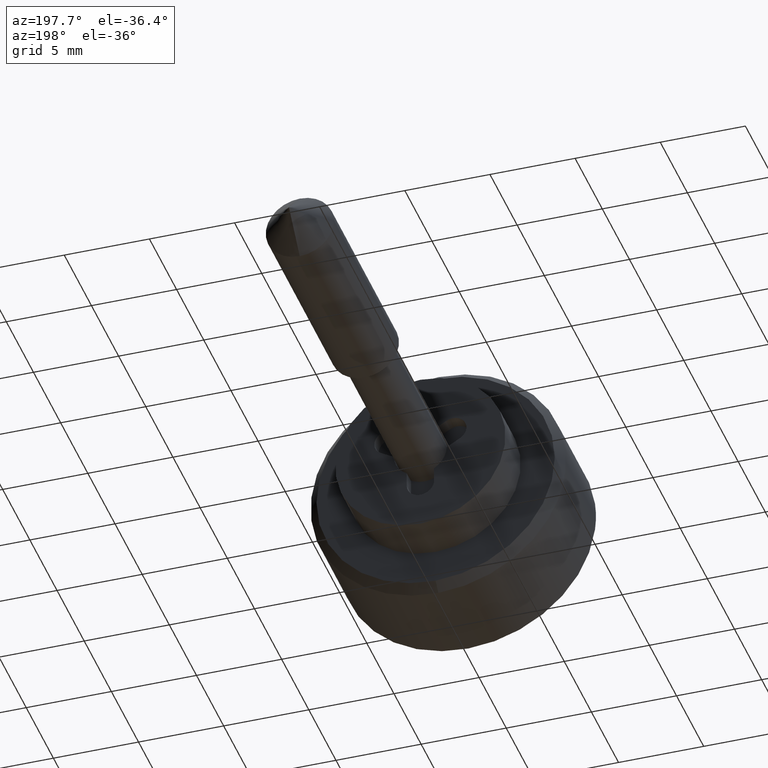
[diagram: clean part render]
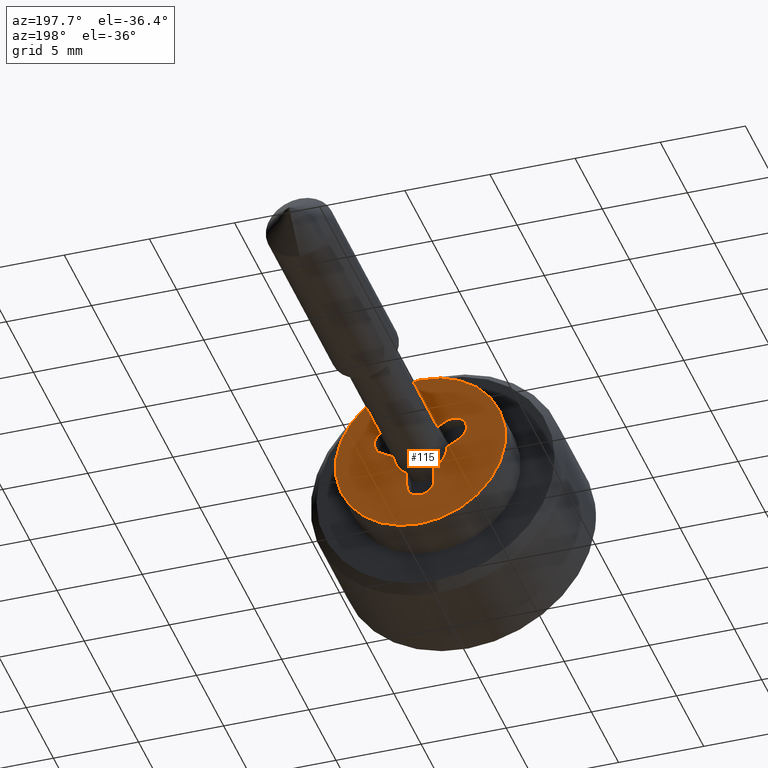
[diagram: same view with one face highlighted and labeled with its STEP entity id]
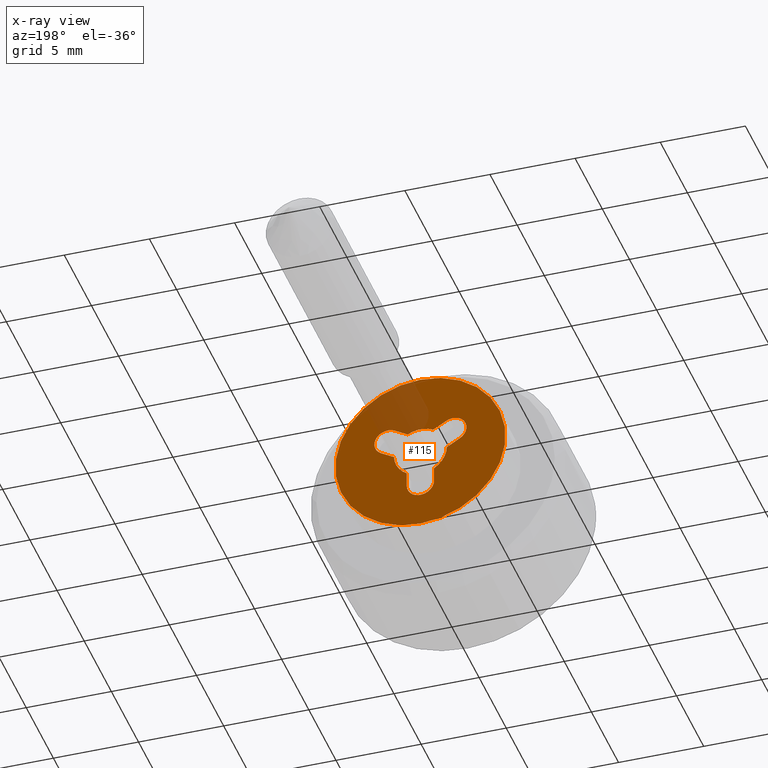
[diagram: x-ray of the same camera — body ghosted, the highlighted face saturated]
A machine part, auxiliary view. The second image highlights one B-rep face of the part: STEP entity #115.
The next image is the same camera in x-ray: the body ghosted, the highlighted face saturated — about 14% of this face is hidden behind the body in this view.
In plain terms, the highlighted planar face has unit normal (0, 1, 0).
Its self-contained STEP definition (entity closure, byte-faithful):
#115=ADVANCED_FACE('',(#181,#182),#180,.T.);
#180=PLANE('',#553);
#181=FACE_OUTER_BOUND('',#554,.T.);
#182=FACE_BOUND('',#555,.T.);
#550=CARTESIAN_POINT('',(-1.03923048454E+01,8.00000000000E-01,6.50000000000E+00));
#551=DIRECTION('',(-0.00000000000E+00,1.00000000000E+00,0.00000000000E+00));
#552=DIRECTION('',(1.00000000000E+00,0.00000000000E+00,0.00000000000E+00));
#553=AXIS2_PLACEMENT_3D('',#550,#551,#552);
#554=EDGE_LOOP('',(#778,#779));
#555=EDGE_LOOP('',(#780,#781,#782,#783,#784,#785,#786,#787,#788,#789,#790,#791));
#778=ORIENTED_EDGE('',*,*,#948,.F.);
#779=ORIENTED_EDGE('',*,*,#949,.F.);
#780=ORIENTED_EDGE('',*,*,#950,.F.);
#781=ORIENTED_EDGE('',*,*,#951,.T.);
#782=ORIENTED_EDGE('',*,*,#952,.F.);
#783=ORIENTED_EDGE('',*,*,#943,.T.);
#784=ORIENTED_EDGE('',*,*,#940,.F.);
#785=ORIENTED_EDGE('',*,*,#947,.T.);
#786=ORIENTED_EDGE('',*,*,#953,.F.);
#787=ORIENTED_EDGE('',*,*,#954,.T.);
#788=ORIENTED_EDGE('',*,*,#955,.F.);
#789=ORIENTED_EDGE('',*,*,#956,.T.);
#790=ORIENTED_EDGE('',*,*,#957,.F.);
#791=ORIENTED_EDGE('',*,*,#958,.T.);
#940=EDGE_CURVE('',#1032,#1039,#1040,.T.);
#943=EDGE_CURVE('',#1059,#1039,#1060,.T.);
#947=EDGE_CURVE('',#1032,#1079,#1086,.T.);
#948=EDGE_CURVE('',#1092,#1093,#1094,.T.);
#949=EDGE_CURVE('',#1093,#1092,#1100,.T.);
#950=EDGE_CURVE('',#1106,#1107,#1108,.T.);
#951=EDGE_CURVE('',#1106,#1114,#1115,.T.);
#952=EDGE_CURVE('',#1059,#1114,#1121,.T.);
#953=EDGE_CURVE('',#1127,#1079,#1128,.T.);
#954=EDGE_CURVE('',#1127,#1134,#1135,.T.);
#955=EDGE_CURVE('',#1141,#1134,#1142,.T.);
#956=EDGE_CURVE('',#1141,#1148,#1149,.T.);
#957=EDGE_CURVE('',#1155,#1148,#1156,.T.);
#958=EDGE_CURVE('',#1155,#1107,#1162,.T.);
#1032=VERTEX_POINT('',#1600);
#1039=VERTEX_POINT('',#1604);
#1040=LINE('',#1605,#1606);
#1059=VERTEX_POINT('',#1616);
#1060=CIRCLE('',#1620,1.55000000000E+00);
#1079=VERTEX_POINT('',#1629);
#1086=CIRCLE('',#1636,8.00034664654E-01);
#1092=VERTEX_POINT('',#1637);
#1093=VERTEX_POINT('',#1638);
#1094=CIRCLE('',#1642,5.00000000000E+00);
#1100=CIRCLE('',#1646,5.00000000000E+00);
#1106=VERTEX_POINT('',#1647);
#1107=VERTEX_POINT('',#1648);
#1108=LINE('',#1649,#1650);
#1114=VERTEX_POINT('',#1652);
#1115=CIRCLE('',#1656,8.00034337861E-01);
#1121=LINE('',#1657,#1658);
#1127=VERTEX_POINT('',#1660);
#1128=LINE('',#1661,#1662);
#1134=VERTEX_POINT('',#1664);
#1135=CIRCLE('',#1668,1.55000000000E+00);
#1141=VERTEX_POINT('',#1669);
#1142=LINE('',#1670,#1671);
#1148=VERTEX_POINT('',#1673);
#1149=CIRCLE('',#1677,8.00000000000E-01);
#1155=VERTEX_POINT('',#1678);
#1156=LINE('',#1679,#1680);
#1162=CIRCLE('',#1685,1.55000000000E+00);
#1600=CARTESIAN_POINT('',(-1.50530000000E+00,8.00000000000E-01,1.79290000000E+00));
#1604=CARTESIAN_POINT('',(-7.49690762770E-01,8.00000000000E-01,1.35663693014E+00));
#1605=CARTESIAN_POINT('',(-1.50530000000E+00,8.00000000000E-01,1.79290000000E+00));
#1606=VECTOR('',#1607,8.72508329767E-01);
#1607=DIRECTION('',(8.66019511163E-01,0.00000000000E+00,-5.00010206181E-01));
#1616=CARTESIAN_POINT('',(7.49639666225E-01,8.00000000000E-01,1.35666516533E+00));
#1617=CARTESIAN_POINT('',(0.00000000000E+00,8.00000000000E-01,0.00000000000E+00));
#1618=DIRECTION('',(0.00000000000E+00,-1.00000000000E+00,0.00000000000E+00));
#1619=DIRECTION('',(-0.00000000000E+00,-0.00000000000E+00,-1.00000000000E+00));
#1620=AXIS2_PLACEMENT_3D('',#1617,#1618,#1619);
#1629=CARTESIAN_POINT('',(-2.30070374578E+00,8.00000000000E-01,4.04546279163E-01));
#1633=CARTESIAN_POINT('',(-1.90532549763E+00,8.00000000000E-01,1.10005437080E+00));
#1634=DIRECTION('',(0.00000000000E+00,-1.00000000000E+00,0.00000000000E+00));
#1635=DIRECTION('',(-0.00000000000E+00,-0.00000000000E+00,-1.00000000000E+00));
#1636=AXIS2_PLACEMENT_3D('',#1633,#1634,#1635);
#1637=CARTESIAN_POINT('',(5.92118946467E-16,8.00000000000E-01,-5.00000000000E+00));
#1638=CARTESIAN_POINT('',(0.00000000000E+00,8.00000000000E-01,5.00000000000E+00));
#1639=CARTESIAN_POINT('',(0.00000000000E+00,8.00000000000E-01,0.00000000000E+00));
#1640=DIRECTION('',(-0.00000000000E+00,-1.00000000000E+00,0.00000000000E+00));
#1641=DIRECTION('',(-1.22460635382E-16,0.00000000000E+00,1.00000000000E+00));
#1642=AXIS2_PLACEMENT_3D('',#1639,#1640,#1641);
#1643=CARTESIAN_POINT('',(0.00000000000E+00,8.00000000000E-01,0.00000000000E+00));
#1644=DIRECTION('',(-0.00000000000E+00,-1.00000000000E+00,0.00000000000E+00));
#1645=DIRECTION('',(-1.22460635382E-16,0.00000000000E+00,1.00000000000E+00));
#1646=AXIS2_PLACEMENT_3D('',#1643,#1644,#1645);
#1647=CARTESIAN_POINT('',(2.30979498356E+00,8.00000000000E-01,4.09852987198E-01));
#1648=CARTESIAN_POINT('',(1.54972899915E+00,8.00000000000E-01,-2.89832568746E-02));
#1649=CARTESIAN_POINT('',(2.30979498356E+00,8.00000000000E-01,4.09852987198E-01));
#1650=VECTOR('',#1651,8.77654573144E-01);
#1651=DIRECTION('',(-8.66019511163E-01,0.00000000000E+00,-5.00010206181E-01));
#1652=CARTESIAN_POINT('',(1.50520000000E+00,8.00000000000E-01,1.79290000000E+00));
#1653=CARTESIAN_POINT('',(1.90522533423E+00,8.00000000000E-01,1.10005465381E+00));
#1654=DIRECTION('',(0.00000000000E+00,-1.00000000000E+00,0.00000000000E+00));
#1655=DIRECTION('',(-0.00000000000E+00,-0.00000000000E+00,-1.00000000000E+00));
#1656=AXIS2_PLACEMENT_3D('',#1653,#1654,#1655);
#1657=CARTESIAN_POINT('',(7.49639666225E-01,8.00000000000E-01,1.35666516533E+00));
#1658=VECTOR('',#1659,8.72451860536E-01);
#1659=DIRECTION('',(8.66019511163E-01,0.00000000000E+00,5.00010206181E-01));
#1660=CARTESIAN_POINT('',(-1.54972790646E+00,8.00000000000E-01,-2.90416243587E-02));
#1661=CARTESIAN_POINT('',(-1.54972790646E+00,8.00000000000E-01,-2.90416243587E-02));
#1662=VECTOR('',#1663,8.67158106298E-01);
#1663=DIRECTION('',(-8.66019511163E-01,0.00000000000E+00,5.00010206181E-01));
#1664=CARTESIAN_POINT('',(-8.00000000000E-01,8.00000000000E-01,-1.32759180474E+00));
#1665=CARTESIAN_POINT('',(0.00000000000E+00,8.00000000000E-01,0.00000000000E+00));
#1666=DIRECTION('',(0.00000000000E+00,-1.00000000000E+00,0.00000000000E+00));
#1667=DIRECTION('',(-0.00000000000E+00,-0.00000000000E+00,-1.00000000000E+00));
#1668=AXIS2_PLACEMENT_3D('',#1665,#1666,#1667);
#1669=CARTESIAN_POINT('',(-8.00000000000E-01,8.00000000000E-01,-2.20000000000E+00));
#1670=CARTESIAN_POINT('',(-8.00000000000E-01,8.00000000000E-01,-2.20000000000E+00));
#1671=VECTOR('',#1672,8.72408195265E-01);
#1672=DIRECTION('',(0.00000000000E+00,0.00000000000E+00,1.00000000000E+00));
#1673=CARTESIAN_POINT('',(8.00000000000E-01,8.00000000000E-01,-2.20000000000E+00));
#1674=CARTESIAN_POINT('',(0.00000000000E+00,8.00000000000E-01,-2.20000000000E+00));
#1675=DIRECTION('',(0.00000000000E+00,-1.00000000000E+00,0.00000000000E+00));
#1676=DIRECTION('',(1.00000000000E+00,0.00000000000E+00,1.83690953073E-16));
#1677=AXIS2_PLACEMENT_3D('',#1674,#1675,#1676);
#1678=CARTESIAN_POINT('',(8.00000000000E-01,8.00000000000E-01,-1.32759180474E+00));
#1679=CARTESIAN_POINT('',(8.00000000000E-01,8.00000000000E-01,-1.32759180474E+00));
#1680=VECTOR('',#1681,8.72408195265E-01);
#1681=DIRECTION('',(0.00000000000E+00,0.00000000000E+00,-1.00000000000E+00));
#1682=CARTESIAN_POINT('',(0.00000000000E+00,8.00000000000E-01,0.00000000000E+00));
#1683=DIRECTION('',(0.00000000000E+00,-1.00000000000E+00,0.00000000000E+00));
#1684=DIRECTION('',(-0.00000000000E+00,-0.00000000000E+00,-1.00000000000E+00));
#1685=AXIS2_PLACEMENT_3D('',#1682,#1683,#1684);